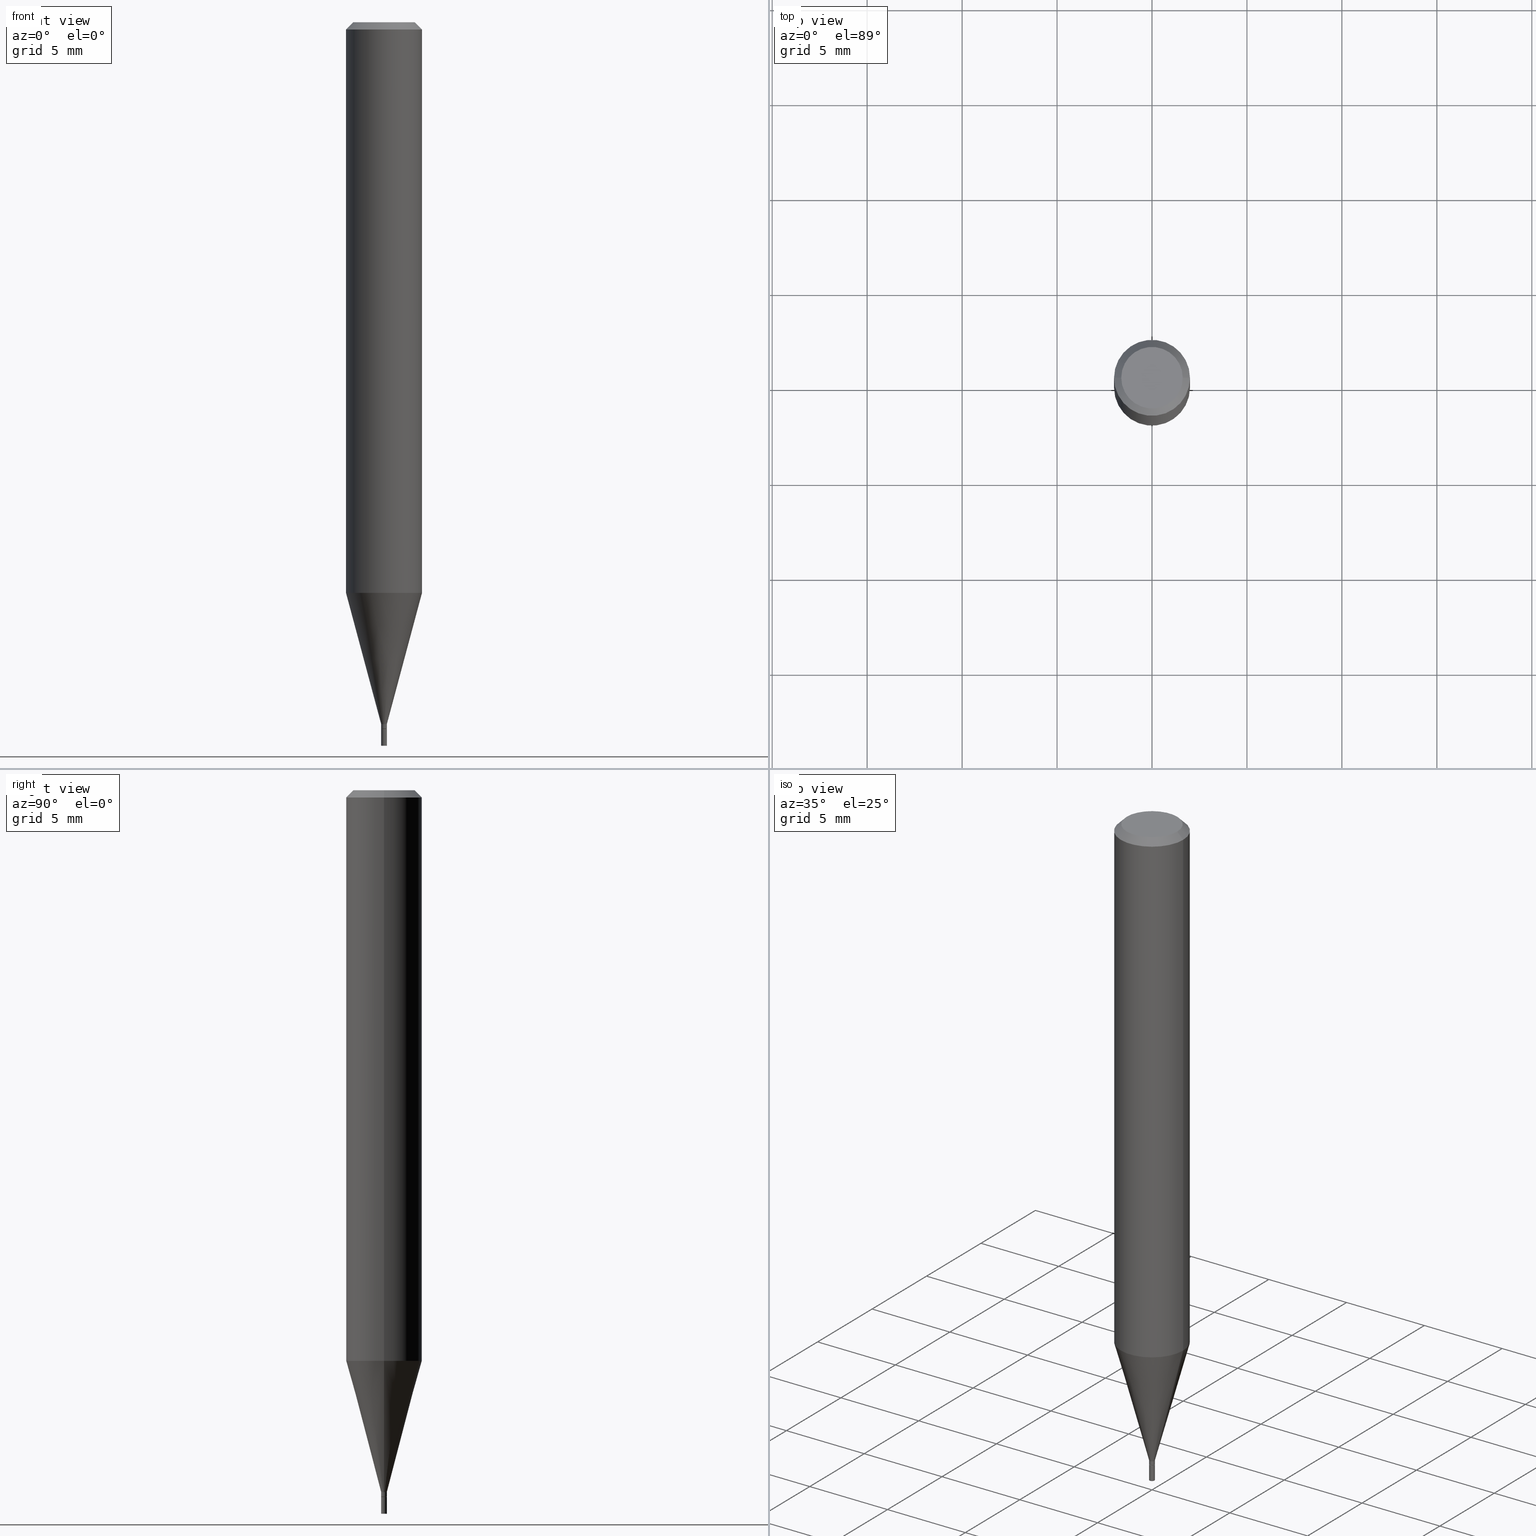
[diagram: canonical four-view strip — front | top / right | iso, engineering-drawing reading convention]
A machine part, canonical four-view strip (front | top / right | iso — engineering-drawing reading convention). The complete STEP part file that produces these views, byte-faithful:
ISO-10303-21;
HEADER;
FILE_DESCRIPTION (( 'STEP AP203' ),
    '1' );
FILE_NAME ('02360.STEP',
    '2024-03-18T20:14:03',
    ( '' ),
    ( '' ),
    'SwSTEP 2.0',
    'SolidWorks 2023',
    '' );
FILE_SCHEMA (( 'CONFIG_CONTROL_DESIGN' ));
ENDSEC;

DATA;
#1 = DIRECTION ( 'NONE',  ( -2.445468806185136597E-29, 3.491481338843145583E-15, 1.000000000000000000 ) ) ;
#2 = PERSON_AND_ORGANIZATION_ROLE ( 'design_supplier' ) ;
#3 = CARTESIAN_POINT ( 'NONE',  ( 3.581633613538751591E-29, -5.113623568869670202E-15, -1.464599999999999902 ) ) ;
#4 = APPROVAL_STATUS ( 'not_yet_approved' ) ;
#5 = CARTESIAN_POINT ( 'NONE',  ( 0.005900000000000001597, -4.119947979834898183E-17, 2.876944297719602825E-31 ) ) ;
#6 = COORDINATED_UNIVERSAL_TIME_OFFSET ( 5, 0, .BEHIND. ) ;
#7 = CYLINDRICAL_SURFACE ( 'NONE', #288, 0.07875000000000000056 ) ;
#8 = CONICAL_SURFACE ( 'NONE', #365, 0.07875000000000000056, 0.7853981633974131960 ) ;
#9 = LOCAL_TIME ( 16, 14, 3.000000000000000000, #439 ) ;
#10 = DIRECTION ( 'NONE',  ( -0.7071067811865642261, 7.493145998870414114E-15, 0.7071067811865309194 ) ) ;
#11 = PERSON_AND_ORGANIZATION ( #424, #175 ) ;
#12 = DIRECTION ( 'NONE',  ( 0.7071067811865227037, -7.319954787623172426E-15, -0.7071067811865723307 ) ) ;
#13 = ADVANCED_FACE ( 'NONE', ( #65 ), #219, .F. ) ;
#14 = DIRECTION ( 'NONE',  ( -2.445468806185136597E-29, 3.491481338843145583E-15, 1.000000000000000000 ) ) ;
#15 = ORIENTED_EDGE ( 'NONE', *, *, #343, .F. ) ;
#16 = VECTOR ( 'NONE', #366, 39.37007874015748143 ) ;
#17 = CARTESIAN_POINT ( 'NONE',  ( 0.000000000000000000, 0.000000000000000000, 0.000000000000000000 ) ) ;
#18 = ORIENTED_EDGE ( 'NONE', *, *, #441, .F. ) ;
#19 = CC_DESIGN_PERSON_AND_ORGANIZATION_ASSIGNMENT ( #160, #442, ( #426 ) ) ;
#20 = ORIENTED_EDGE ( 'NONE', *, *, #261, .F. ) ;
#21 = DIRECTION ( 'NONE',  ( -2.445468806185136597E-29, 3.491481338843145583E-15, 1.000000000000000000 ) ) ;
#22 = VERTEX_POINT ( 'NONE', #209 ) ;
#23 = VECTOR ( 'NONE', #146, 39.37007874015747433 ) ;
#24 = APPROVAL_DATE_TIME ( #171, #403 ) ;
#25 = ORIENTED_EDGE ( 'NONE', *, *, #134, .F. ) ;
#26 = ORIENTED_EDGE ( 'NONE', *, *, #465, .T. ) ;
#27 = CARTESIAN_POINT ( 'NONE',  ( 0.005899999999999924402, -5.121304827815126395E-15, -1.455000000000000293 ) ) ;
#28 = CIRCLE ( 'NONE', #174, 0.06375000000000000111 ) ;
#29 = ADVANCED_FACE ( 'NONE', ( #461 ), #425, .T. ) ;
#30 = AXIS2_PLACEMENT_3D ( 'NONE', #418, #137, #109 ) ;
#31 = ORIENTED_EDGE ( 'NONE', *, *, #165, .F. ) ;
#32 = MANIFOLD_SOLID_BREP ( 'Body-Move/Copy2[1]', #394 ) ;
#33 = DIRECTION ( 'NONE',  ( 0.7071067811865642261, -2.468850131082431399E-15, 0.7071067811865309194 ) ) ;
#34 = VERTEX_POINT ( 'NONE', #121 ) ;
#35 = DIRECTION ( 'NONE',  ( 1.000000000000000000, -6.982962677686265922E-15, 4.876176775795935232E-29 ) ) ;
#36 = DIRECTION ( 'NONE',  ( -2.445468806185136877E-29, 3.491481338843145188E-15, 1.000000000000000000 ) ) ;
#37 = CIRCLE ( 'NONE', #463, 0.005400000000000002021 ) ;
#38 = CARTESIAN_POINT ( 'NONE',  ( 0.005899999999999924402, -4.119947979834845181E-17, 2.876944297719565603E-31 ) ) ;
#39 = DATE_TIME_ROLE ( 'creation_date' ) ;
#40 = EDGE_CURVE ( 'NONE', #173, #22, #295, .T. ) ;
#41 = DIRECTION ( 'NONE',  ( -2.445468806185136597E-29, 3.491481338843145583E-15, 1.000000000000000000 ) ) ;
#42 = APPROVAL_DATE_TIME ( #361, #459 ) ;
#43 = DIRECTION ( 'NONE',  ( -2.445468806185136597E-29, 3.491481338843145583E-15, 1.000000000000000000 ) ) ;
#44 = CARTESIAN_POINT ( 'NONE',  ( 3.581633613538751591E-29, -5.113623568869670202E-15, -1.464599999999999902 ) ) ;
#45 = CARTESIAN_POINT ( 'NONE',  ( -0.005400000000000002021, -5.075254261138625073E-15, -1.464599999999999902 ) ) ;
#46 = CARTESIAN_POINT ( 'NONE',  ( -0.005899999999999924402, -5.038183326606932095E-15, -1.455000000000000293 ) ) ;
#47 = VECTOR ( 'NONE', #257, 39.37007874015748143 ) ;
#48 = APPROVAL_DATE_TIME ( #308, #276 ) ;
#49 = CARTESIAN_POINT ( 'NONE',  ( -0.07875000000000000056, 4.975360907851462665E-16, -0.01499999999999999944 ) ) ;
#50 = APPROVAL_STATUS ( 'not_yet_approved' ) ;
#51 = DATE_TIME_ROLE ( 'classification_date' ) ;
#52 = DIRECTION ( 'NONE',  ( -2.445468806185136597E-29, 3.491481338843145583E-15, 1.000000000000000000 ) ) ;
#53 = APPROVAL_ROLE ( '' ) ;
#54 = DIRECTION ( 'NONE',  ( 1.000000000000000000, 0.000000000000000000, 0.000000000000000000 ) ) ;
#55 = ORIENTED_EDGE ( 'NONE', *, *, #395, .F. ) ;
#56 = ADVANCED_FACE ( 'NONE', ( #79 ), #149, .T. ) ;
#57 = CARTESIAN_POINT ( 'NONE',  ( 3.581633613538751591E-29, -5.113623568869670202E-15, -1.464599999999999902 ) ) ;
#58 = EDGE_CURVE ( 'NONE', #287, #458, #234, .T. ) ;
#59 = EDGE_CURVE ( 'NONE', #22, #173, #28, .T. ) ;
#60 = ORIENTED_EDGE ( 'NONE', *, *, #204, .F. ) ;
#61 = CONICAL_SURFACE ( 'NONE', #182, 0.005400000000000002021, 0.7853981633974718157 ) ;
#62 = SECURITY_CLASSIFICATION ( '', '', #151 ) ;
#63 = ORIENTED_EDGE ( 'NONE', *, *, #58, .T. ) ;
#64 = EDGE_CURVE ( 'NONE', #410, #180, #357, .T. ) ;
#65 = FACE_OUTER_BOUND ( 'NONE', #138, .T. ) ;
#66 = EDGE_CURVE ( 'NONE', #203, #282, #37, .T. ) ;
#67 = LINE ( 'NONE', #433, #99 ) ;
#68 = ORIENTED_EDGE ( 'NONE', *, *, #150, .F. ) ;
#69 = CC_DESIGN_DATE_AND_TIME_ASSIGNMENT ( #226, #39, ( #426 ) ) ;
#70 = CARTESIAN_POINT ( 'NONE',  ( -0.005900000000000001597, 4.192202140984592232E-17, -2.902171703250394946E-31 ) ) ;
#71 = AXIS2_PLACEMENT_3D ( 'NONE', #44, #21, #380 ) ;
#72 = LOCAL_TIME ( 16, 14, 3.000000000000000000, #445 ) ;
#73 = CARTESIAN_POINT ( 'NONE',  ( 0.005400000000000002021, -5.151331567329176257E-15, -1.464599999999999902 ) ) ;
#74 = ORIENTED_EDGE ( 'NONE', *, *, #186, .F. ) ;
#75 = CARTESIAN_POINT ( 'NONE',  ( 0.000000000000000000, 0.000000000000000000, 0.000000000000000000 ) ) ;
#76 = CYLINDRICAL_SURFACE ( 'NONE', #457, 0.005900000000000001597 ) ;
#77 = LINE ( 'NONE', #292, #251 ) ;
#78 = PERSON_AND_ORGANIZATION ( #424, #175 ) ;
#79 = FACE_OUTER_BOUND ( 'NONE', #455, .T. ) ;
#80 = AXIS2_PLACEMENT_3D ( 'NONE', #371, #397, #164 ) ;
#81 = ADVANCED_FACE ( 'NONE', ( #184 ), #399, .F. ) ;
#82 = EDGE_CURVE ( 'NONE', #205, #410, #260, .T. ) ;
#83 = FACE_OUTER_BOUND ( 'NONE', #130, .T. ) ;
#84 = DIRECTION ( 'NONE',  ( -1.000000000000000000, 6.982962677686265922E-15, 0.000000000000000000 ) ) ;
#85 = FACE_OUTER_BOUND ( 'NONE', #208, .T. ) ;
#86 = SHAPE_DEFINITION_REPRESENTATION ( #368, #231 ) ;
#87 = LINE ( 'NONE', #230, #374 ) ;
#88 = PLANE ( 'NONE',  #105 ) ;
#89 = DIRECTION ( 'NONE',  ( -2.445468806185136597E-29, 3.491481338843145583E-15, 1.000000000000000000 ) ) ;
#90 = AXIS2_PLACEMENT_3D ( 'NONE', #386, #291, #286 ) ;
#91 = DIRECTION ( 'NONE',  ( -2.445468806185136597E-29, 3.491481338843145583E-15, 1.000000000000000000 ) ) ;
#92 = CARTESIAN_POINT ( 'NONE',  ( 3.668203209277705088E-31, -5.237222008264718399E-17, -0.01499999999999999944 ) ) ;
#93 = ADVANCED_FACE ( 'NONE', ( #266 ), #436, .T. ) ;
#94 =( LENGTH_UNIT ( ) NAMED_UNIT ( * ) SI_UNIT ( $, .METRE. ) );
#95 = ORIENTED_EDGE ( 'NONE', *, *, #107, .T. ) ;
#96 = CALENDAR_DATE ( 2024, 18, 3 ) ;
#97 = CC_DESIGN_PERSON_AND_ORGANIZATION_ASSIGNMENT ( #78, #265, ( #428 ) ) ;
#98 = AXIS2_PLACEMENT_3D ( 'NONE', #335, #193, #431 ) ;
#99 = VECTOR ( 'NONE', #214, 39.37007874015747433 ) ;
#100 = VECTOR ( 'NONE', #162, 39.37007874015748143 ) ;
#101 = UNCERTAINTY_MEASURE_WITH_UNIT (LENGTH_MEASURE( 1.000000000000000082E-05 ), #169, 'distance_accuracy_value', 'NONE');
#102 = ORIENTED_EDGE ( 'NONE', *, *, #82, .F. ) ;
#103 = CALENDAR_DATE ( 2024, 18, 3 ) ;
#104 = ORIENTED_EDGE ( 'NONE', *, *, #395, .T. ) ;
#105 = AXIS2_PLACEMENT_3D ( 'NONE', #411, #122, #336 ) ;
#106 = DIRECTION ( 'NONE',  ( -2.438088387897960049E-29, 3.491481338843145188E-15, 1.000000000000000000 ) ) ;
#107 = EDGE_CURVE ( 'NONE', #342, #420, #168, .T. ) ;
#108 = ORIENTED_EDGE ( 'NONE', *, *, #66, .T. ) ;
#109 = DIRECTION ( 'NONE',  ( 1.000000000000000000, -6.982962677686216223E-15, 0.000000000000000000 ) ) ;
#110 = ORIENTED_EDGE ( 'NONE', *, *, #398, .F. ) ;
#111 = CIRCLE ( 'NONE', #71, 0.005400000000000002021 ) ;
#112 = ORIENTED_EDGE ( 'NONE', *, *, #249, .T. ) ;
#113 = DIMENSIONAL_EXPONENTS ( 1.000000000000000000, 0.000000000000000000, 0.000000000000000000, 0.000000000000000000, 0.000000000000000000, 0.000000000000000000, 0.000000000000000000 ) ;
#114 = DIRECTION ( 'NONE',  ( 1.000000000000000000, -6.982962677686307731E-15, 0.000000000000000000 ) ) ;
#115 = CARTESIAN_POINT ( 'NONE',  ( 3.558157112999374623E-29, -5.080105348016777334E-15, -1.455000000000000293 ) ) ;
#116 = LINE ( 'NONE', #70, #47 ) ;
#117 = DIRECTION ( 'NONE',  ( -2.445468806185136877E-29, 3.491481338843145188E-15, 1.000000000000000000 ) ) ;
#118 = DIRECTION ( 'NONE',  ( 2.445468806185136597E-29, -3.491481338843145583E-15, -1.000000000000000000 ) ) ;
#119 = AXIS2_PLACEMENT_3D ( 'NONE', #406, #52, #221 ) ;
#120 = CIRCLE ( 'NONE', #145, 0.07875000000000000056 ) ;
#121 = CARTESIAN_POINT ( 'NONE',  ( -0.005899999999999924402, -5.069955806790403460E-15, -1.464100000000000179 ) ) ;
#122 = DIRECTION ( 'NONE',  ( 2.438088387897960049E-29, -3.491481338843145188E-15, -1.000000000000000000 ) ) ;
#123 = CARTESIAN_POINT ( 'NONE',  ( 3.581633613538751591E-29, -5.113623568869670202E-15, -1.464599999999999902 ) ) ;
#124 = AXIS2_PLACEMENT_3D ( 'NONE', #452, #419, #416 ) ;
#125 = APPROVAL_PERSON_ORGANIZATION ( #191, #403, #153 ) ;
#126 = COORDINATED_UNIVERSAL_TIME_OFFSET ( 5, 0, .BEHIND. ) ;
#127 = ADVANCED_FACE ( 'NONE', ( #435 ), #7, .T. ) ;
#128 = ORIENTED_EDGE ( 'NONE', *, *, #465, .F. ) ;
#129 = VECTOR ( 'NONE', #117, 39.37007874015748143 ) ;
#130 = EDGE_LOOP ( 'NONE', ( #74, #279 ) ) ;
#131 = DIRECTION ( 'NONE',  ( 0.000000000000000000, 0.000000000000000000, 1.000000000000000000 ) ) ;
#132 = ORIENTED_EDGE ( 'NONE', *, *, #294, .F. ) ;
#133 = CARTESIAN_POINT ( 'NONE',  ( -0.005400000000000002021, -5.072605033964513872E-15, -1.464599999999999902 ) ) ;
#134 = EDGE_CURVE ( 'NONE', #310, #315, #300, .T. ) ;
#135 = ORIENTED_EDGE ( 'NONE', *, *, #201, .F. ) ;
#136 = APPLICATION_CONTEXT ( 'configuration controlled 3d designs of mechanical parts and assemblies' ) ;
#137 = DIRECTION ( 'NONE',  ( -2.445468806185136597E-29, 3.491481338843145583E-15, 1.000000000000000000 ) ) ;
#138 = EDGE_LOOP ( 'NONE', ( #344, #339 ) ) ;
#139 = CARTESIAN_POINT ( 'NONE',  ( 0.005900000000000001597, -5.278421488063067239E-15, -1.500000000000000222 ) ) ;
#140 = ORIENTED_EDGE ( 'NONE', *, *, #441, .T. ) ;
#141 = ADVANCED_FACE ( 'NONE', ( #152 ), #352, .T. ) ;
#142 = EDGE_LOOP ( 'NONE', ( #20, #385, #104, #60 ) ) ;
#143 = FACE_OUTER_BOUND ( 'NONE', #142, .T. ) ;
#144 = AXIS2_PLACEMENT_3D ( 'NONE', #254, #118, #84 ) ;
#145 = AXIS2_PLACEMENT_3D ( 'NONE', #273, #91, #199 ) ;
#146 = DIRECTION ( 'NONE',  ( -0.2588190451025213501, 5.211531920934551042E-15, 0.9659258262890682012 ) ) ;
#147 = EDGE_CURVE ( 'NONE', #22, #410, #87, .T. ) ;
#148 = APPROVAL_STATUS ( 'not_yet_approved' ) ;
#149 = CYLINDRICAL_SURFACE ( 'NONE', #119, 0.005899999999999924402 ) ;
#150 = EDGE_CURVE ( 'NONE', #287, #315, #317, .T. ) ;
#151 = SECURITY_CLASSIFICATION_LEVEL ( 'unclassified' ) ;
#152 = FACE_OUTER_BOUND ( 'NONE', #305, .T. ) ;
#153 = APPROVAL_ROLE ( '' ) ;
#154 = APPLICATION_CONTEXT ( 'configuration controlled 3d designs of mechanical parts and assemblies' ) ;
#155 = DIRECTION ( 'NONE',  ( -2.438088387897960049E-29, 3.491481338843145188E-15, 1.000000000000000000 ) ) ;
#156 = CIRCLE ( 'NONE', #30, 0.005900000000000001597 ) ;
#157 = DIRECTION ( 'NONE',  ( 1.000000000000000000, -6.982962677686265922E-15, 4.876176775795935232E-29 ) ) ;
#158 = PERSON_AND_ORGANIZATION ( #424, #175 ) ;
#159 = DIRECTION ( 'NONE',  ( -2.445468806185136597E-29, 3.491481338843145583E-15, 1.000000000000000000 ) ) ;
#160 = PERSON_AND_ORGANIZATION ( #424, #175 ) ;
#161 = CARTESIAN_POINT ( 'NONE',  ( 2.893283295264761422E-29, -4.130841746111705750E-15, -1.183120098668607900 ) ) ;
#162 = DIRECTION ( 'NONE',  ( -0.7071067811865227037, 2.468850131081997131E-15, -0.7071067811865723307 ) ) ;
#163 = ORIENTED_EDGE ( 'NONE', *, *, #40, .F. ) ;
#164 = DIRECTION ( 'NONE',  ( 1.000000000000000000, -6.982962677686307731E-15, 0.000000000000000000 ) ) ;
#165 = EDGE_CURVE ( 'NONE', #449, #324, #278, .T. ) ;
#166 = ORIENTED_EDGE ( 'NONE', *, *, #150, .T. ) ;
#167 = ORIENTED_EDGE ( 'NONE', *, *, #147, .F. ) ;
#168 = CIRCLE ( 'NONE', #381, 0.005900000000000001597 ) ;
#169 =( CONVERSION_BASED_UNIT ( 'INCH', #172 ) LENGTH_UNIT ( ) NAMED_UNIT ( #113 ) );
#170 = ORIENTED_EDGE ( 'NONE', *, *, #58, .F. ) ;
#171 = DATE_AND_TIME ( #103, #319 ) ;
#172 = LENGTH_MEASURE_WITH_UNIT ( LENGTH_MEASURE( 0.02539999999999999897 ), #94 );
#173 = VERTEX_POINT ( 'NONE', #430 ) ;
#174 = AXIS2_PLACEMENT_3D ( 'NONE', #362, #293, #364 ) ;
#175 = ORGANIZATION ( 'UNSPECIFIED', 'UNSPECIFIED', '' ) ;
#176 = CARTESIAN_POINT ( 'NONE',  ( 3.558157112999374623E-29, -5.080105348016777334E-15, -1.455000000000000293 ) ) ;
#177 = EDGE_LOOP ( 'NONE', ( #378, #140, #456, #68 ) ) ;
#178 = EDGE_LOOP ( 'NONE', ( #132, #26, #348, #15 ) ) ;
#179 = DIRECTION ( 'NONE',  ( -2.445468806185136877E-29, 3.491481338843145188E-15, 1.000000000000000000 ) ) ;
#180 = VERTEX_POINT ( 'NONE', #225 ) ;
#181 = AXIS2_PLACEMENT_3D ( 'NONE', #75, #355, #35 ) ;
#182 = AXIS2_PLACEMENT_3D ( 'NONE', #353, #1, #350 ) ;
#183 = LOCAL_TIME ( 16, 14, 3.000000000000000000, #126 ) ;
#184 = FACE_OUTER_BOUND ( 'NONE', #421, .T. ) ;
#185 = MANIFOLD_SOLID_BREP ( 'Body-Move/Copy2[2]', #379 ) ;
#186 = EDGE_CURVE ( 'NONE', #282, #203, #111, .T. ) ;
#187 = CARTESIAN_POINT ( 'NONE',  ( 0.000000000000000000, 0.000000000000000000, 0.000000000000000000 ) ) ;
#188 = LINE ( 'NONE', #73, #206 ) ;
#189 = PERSON_AND_ORGANIZATION ( #424, #175 ) ;
#190 = DIRECTION ( 'NONE',  ( -2.445468806185136597E-29, 3.491481338843145583E-15, 1.000000000000000000 ) ) ;
#191 = PERSON_AND_ORGANIZATION ( #424, #175 ) ;
#192 = DIRECTION ( 'NONE',  ( 1.000000000000000000, -6.982962677686307731E-15, 0.000000000000000000 ) ) ;
#193 = DIRECTION ( 'NONE',  ( -2.445468806185136597E-29, 3.491481338843145583E-15, 1.000000000000000000 ) ) ;
#194 = VECTOR ( 'NONE', #36, 39.37007874015748143 ) ;
#195 = DIRECTION ( 'NONE',  ( 2.438088387897960049E-29, -3.491481338843145188E-15, -1.000000000000000000 ) ) ;
#196 = AXIS2_PLACEMENT_3D ( 'NONE', #454, #131, #54 ) ;
#197 = DIRECTION ( 'NONE',  ( 1.000000000000000000, -6.982962677686265922E-15, 4.876176775795935793E-29 ) ) ;
#198 = CARTESIAN_POINT ( 'NONE',  ( 3.581633613538751591E-29, -5.113623568869670202E-15, -1.464599999999999902 ) ) ;
#199 = DIRECTION ( 'NONE',  ( 1.000000000000000000, -6.982962677686268288E-15, 0.000000000000000000 ) ) ;
#200 = ORIENTED_EDGE ( 'NONE', *, *, #422, .T. ) ;
#201 = EDGE_CURVE ( 'NONE', #205, #458, #241, .T. ) ;
#202 = CONICAL_SURFACE ( 'NONE', #451, 0.005899999999999924402, 0.2617993877991500740 ) ;
#203 = VERTEX_POINT ( 'NONE', #133 ) ;
#204 = EDGE_CURVE ( 'NONE', #324, #449, #156, .T. ) ;
#205 = VERTEX_POINT ( 'NONE', #377 ) ;
#206 = VECTOR ( 'NONE', #33, 39.37007874015748143 ) ;
#207 = CC_DESIGN_SECURITY_CLASSIFICATION ( #62, ( #428 ) ) ;
#208 = EDGE_LOOP ( 'NONE', ( #384, #354 ) ) ;
#209 = CARTESIAN_POINT ( 'NONE',  ( 0.06375000000000000111, -5.149965923825433530E-16, 1.055081022549815572E-15 ) ) ;
#210 = CC_DESIGN_PERSON_AND_ORGANIZATION_ASSIGNMENT ( #11, #401, ( #62 ) ) ;
#211 = EDGE_LOOP ( 'NONE', ( #250, #351, #110, #412 ) ) ;
#212 = AXIS2_PLACEMENT_3D ( 'NONE', #123, #89, #429 ) ;
#213 = CC_DESIGN_APPROVAL ( #459, ( #62 ) ) ;
#214 = DIRECTION ( 'NONE',  ( 0.2588190451025213501, 1.565188264969621968E-15, 0.9659258262890682012 ) ) ;
#215 = CARTESIAN_POINT ( 'NONE',  ( 3.558157112999374623E-29, -5.080105348016777334E-15, -1.455000000000000293 ) ) ;
#216 = EDGE_LOOP ( 'NONE', ( #376, #280, #453, #383 ) ) ;
#217 = EDGE_CURVE ( 'NONE', #315, #287, #332, .T. ) ;
#218 = DIRECTION ( 'NONE',  ( -1.000000000000000000, 6.982962677686265922E-15, 0.000000000000000000 ) ) ;
#219 = PLANE ( 'NONE',  #245 ) ;
#220 = DIRECTION ( 'NONE',  ( -2.445468806185136597E-29, 3.491481338843145583E-15, 1.000000000000000000 ) ) ;
#221 = DIRECTION ( 'NONE',  ( 1.000000000000000000, -6.982962677686267499E-15, 4.876176775795936353E-29 ) ) ;
#222 = AXIS2_PLACEMENT_3D ( 'NONE', #17, #443, #197 ) ;
#223 = ADVANCED_FACE ( 'NONE', ( #346 ), #202, .T. ) ;
#224 = CARTESIAN_POINT ( 'NONE',  ( 3.668203209277704895E-29, -5.237222008264718177E-15, -1.500000000000000222 ) ) ;
#225 = CARTESIAN_POINT ( 'NONE',  ( -0.07875000000000000056, -1.532054578686097613E-15, -0.01499999999999999944 ) ) ;
#226 = DATE_AND_TIME ( #275, #72 ) ;
#227 = DIRECTION ( 'NONE',  ( 1.000000000000000000, -6.982962677686265922E-15, 4.876176775795935793E-29 ) ) ;
#228 = APPROVAL_ROLE ( '' ) ;
#229 = CARTESIAN_POINT ( 'NONE',  ( 3.668203209277705088E-31, -5.237222008264718399E-17, -0.01499999999999999944 ) ) ;
#230 = CARTESIAN_POINT ( 'NONE',  ( 0.07875000000000000056, -5.926364374071552647E-16, -0.01499999999999999944 ) ) ;
#231 = ADVANCED_BREP_SHAPE_REPRESENTATION ( '02360', ( #32, #185, #196 ), #341 ) ;
#232 = DIRECTION ( 'NONE',  ( 1.000000000000000000, -6.982962677686265922E-15, 0.000000000000000000 ) ) ;
#233 = AXIS2_PLACEMENT_3D ( 'NONE', #198, #256, #393 ) ;
#234 = LINE ( 'NONE', #46, #23 ) ;
#235 = CIRCLE ( 'NONE', #464, 0.005899999999999924402 ) ;
#236 = FACE_OUTER_BOUND ( 'NONE', #247, .T. ) ;
#237 = PERSON_AND_ORGANIZATION_ROLE ( 'design_owner' ) ;
#238 = ORIENTED_EDGE ( 'NONE', *, *, #64, .F. ) ;
#239 = EDGE_CURVE ( 'NONE', #420, #342, #296, .T. ) ;
#240 = ORIENTED_EDGE ( 'NONE', *, *, #59, .T. ) ;
#241 = CIRCLE ( 'NONE', #309, 0.07875000000000000056 ) ;
#242 =( NAMED_UNIT ( * ) PLANE_ANGLE_UNIT ( ) SI_UNIT ( $, .RADIAN. ) );
#243 = PRODUCT ( '02360', '02360', '', ( #311 ) ) ;
#244 = ORIENTED_EDGE ( 'NONE', *, *, #261, .T. ) ;
#245 = AXIS2_PLACEMENT_3D ( 'NONE', #284, #106, #323 ) ;
#246 = AXIS2_PLACEMENT_3D ( 'NONE', #283, #14, #232 ) ;
#247 = EDGE_LOOP ( 'NONE', ( #95, #244, #31, #55 ) ) ;
#248 = ORIENTED_EDGE ( 'NONE', *, *, #217, .F. ) ;
#249 = EDGE_CURVE ( 'NONE', #282, #310, #188, .T. ) ;
#250 = ORIENTED_EDGE ( 'NONE', *, *, #186, .T. ) ;
#251 = VECTOR ( 'NONE', #179, 39.37007874015748143 ) ;
#252 = EDGE_LOOP ( 'NONE', ( #320, #387, #238, #102 ) ) ;
#253 = FACE_OUTER_BOUND ( 'NONE', #450, .T. ) ;
#254 = CARTESIAN_POINT ( 'NONE',  ( 3.668203209277705088E-31, -5.237222008264718399E-17, -0.01499999999999999944 ) ) ;
#255 = CARTESIAN_POINT ( 'NONE',  ( 0.005400000000000002021, -5.151331567329176257E-15, -1.464599999999999902 ) ) ;
#256 = DIRECTION ( 'NONE',  ( -2.445468806185136597E-29, 3.491481338843145583E-15, 1.000000000000000000 ) ) ;
#257 = DIRECTION ( 'NONE',  ( -2.445468806185136877E-29, 3.491481338843145188E-15, 1.000000000000000000 ) ) ;
#258 = ADVANCED_FACE ( 'NONE', ( #405 ), #8, .T. ) ;
#259 = AXIS2_PLACEMENT_3D ( 'NONE', #176, #220, #114 ) ;
#260 = LINE ( 'NONE', #466, #129 ) ;
#261 = EDGE_CURVE ( 'NONE', #420, #324, #116, .T. ) ;
#262 =( NAMED_UNIT ( * ) SI_UNIT ( $, .STERADIAN. ) SOLID_ANGLE_UNIT ( ) );
#263 = EDGE_CURVE ( 'NONE', #34, #287, #289, .T. ) ;
#264 = CARTESIAN_POINT ( 'NONE',  ( 0.000000000000000000, 0.000000000000000000, 0.000000000000000000 ) ) ;
#265 = PERSON_AND_ORGANIZATION_ROLE ( 'creator' ) ;
#266 = FACE_OUTER_BOUND ( 'NONE', #347, .T. ) ;
#267 = LINE ( 'NONE', #45, #340 ) ;
#268 = CALENDAR_DATE ( 2024, 18, 3 ) ;
#269 = DIRECTION ( 'NONE',  ( -1.000000000000000000, 6.982962677686265922E-15, -4.876176775795935793E-29 ) ) ;
#270 = DIRECTION ( 'NONE',  ( 1.000000000000000000, -6.982962677686267499E-15, 4.876176775795936353E-29 ) ) ;
#271 = CC_DESIGN_APPROVAL ( #276, ( #426 ) ) ;
#272 = ORIENTED_EDGE ( 'NONE', *, *, #263, .T. ) ;
#273 = CARTESIAN_POINT ( 'NONE',  ( 2.893283295264761422E-29, -4.130841746111705750E-15, -1.183120098668607900 ) ) ;
#274 = ORIENTED_EDGE ( 'NONE', *, *, #413, .F. ) ;
#275 = CALENDAR_DATE ( 2024, 18, 3 ) ;
#276 = APPROVAL ( #50, 'UNSPECIFIED' ) ;
#277 = DIRECTION ( 'NONE',  ( 1.000000000000000000, -6.982962677686268288E-15, 0.000000000000000000 ) ) ;
#278 = CIRCLE ( 'NONE', #212, 0.005900000000000001597 ) ;
#279 = ORIENTED_EDGE ( 'NONE', *, *, #66, .F. ) ;
#280 = ORIENTED_EDGE ( 'NONE', *, *, #147, .T. ) ;
#281 = CIRCLE ( 'NONE', #80, 0.005899999999999924402 ) ;
#282 = VERTEX_POINT ( 'NONE', #255 ) ;
#283 = CARTESIAN_POINT ( 'NONE',  ( 3.668203209277705088E-31, -5.237222008264718399E-17, -0.01499999999999999944 ) ) ;
#284 = CARTESIAN_POINT ( 'NONE',  ( 3.576687321579069994E-29, -5.368277968210015545E-15, -1.500000000000000222 ) ) ;
#285 = CC_DESIGN_PERSON_AND_ORGANIZATION_ASSIGNMENT ( #189, #2, ( #428 ) ) ;
#286 = DIRECTION ( 'NONE',  ( 1.000000000000000000, -6.982962677686216223E-15, 0.000000000000000000 ) ) ;
#287 = VERTEX_POINT ( 'NONE', #392 ) ;
#288 = AXIS2_PLACEMENT_3D ( 'NONE', #290, #402, #157 ) ;
#289 = LINE ( 'NONE', #356, #194 ) ;
#290 = CARTESIAN_POINT ( 'NONE',  ( 0.000000000000000000, 0.000000000000000000, 0.000000000000000000 ) ) ;
#291 = DIRECTION ( 'NONE',  ( -2.445468806185136597E-29, 3.491481338843145583E-15, 1.000000000000000000 ) ) ;
#292 = CARTESIAN_POINT ( 'NONE',  ( -0.07875000000000000056, 5.595524044110789003E-16, -3.873661383575737792E-30 ) ) ;
#293 = DIRECTION ( 'NONE',  ( -2.445468806185136597E-29, 3.491481338843145583E-15, 1.000000000000000000 ) ) ;
#294 = EDGE_CURVE ( 'NONE', #458, #180, #77, .T. ) ;
#295 = CIRCLE ( 'NONE', #98, 0.06375000000000000111 ) ;
#296 = CIRCLE ( 'NONE', #90, 0.005900000000000001597 ) ;
#297 = CARTESIAN_POINT ( 'NONE',  ( 3.580410879135658789E-29, -5.111877828200250276E-15, -1.464100000000000179 ) ) ;
#298 = APPLICATION_PROTOCOL_DEFINITION ( 'international standard', 'config_control_design', 1994, #154 ) ;
#299 = APPROVAL_PERSON_ORGANIZATION ( #434, #459, #228 ) ;
#300 = LINE ( 'NONE', #38, #414 ) ;
#301 = DATE_AND_TIME ( #326, #304 ) ;
#302 = DIRECTION ( 'NONE',  ( 1.000000000000000000, -6.982962677686307731E-15, 0.000000000000000000 ) ) ;
#303 = CYLINDRICAL_SURFACE ( 'NONE', #334, 0.005899999999999924402 ) ;
#304 = LOCAL_TIME ( 16, 14, 3.000000000000000000, #6 ) ;
#305 = EDGE_LOOP ( 'NONE', ( #167, #163, #200, #423 ) ) ;
#306 = EDGE_CURVE ( 'NONE', #315, #205, #67, .T. ) ;
#307 = CYLINDRICAL_SURFACE ( 'NONE', #222, 0.005900000000000001597 ) ;
#308 = DATE_AND_TIME ( #96, #183 ) ;
#309 = AXIS2_PLACEMENT_3D ( 'NONE', #161, #318, #277 ) ;
#310 = VERTEX_POINT ( 'NONE', #462 ) ;
#311 = MECHANICAL_CONTEXT ( 'NONE', #136, 'mechanical' ) ;
#312 = ORIENTED_EDGE ( 'NONE', *, *, #217, .T. ) ;
#313 = ADVANCED_FACE ( 'NONE', ( #253 ), #345, .T. ) ;
#314 = PRODUCT_RELATED_PRODUCT_CATEGORY ( 'detail', '', ( #243 ) ) ;
#315 = VERTEX_POINT ( 'NONE', #27 ) ;
#316 = ORIENTED_EDGE ( 'NONE', *, *, #40, .T. ) ;
#317 = CIRCLE ( 'NONE', #396, 0.005899999999999924402 ) ;
#318 = DIRECTION ( 'NONE',  ( -2.445468806185136597E-29, 3.491481338843145583E-15, 1.000000000000000000 ) ) ;
#319 = LOCAL_TIME ( 16, 14, 3.000000000000000000, #415 ) ;
#320 = ORIENTED_EDGE ( 'NONE', *, *, #201, .T. ) ;
#321 = CC_DESIGN_DATE_AND_TIME_ASSIGNMENT ( #301, #51, ( #62 ) ) ;
#322 = DIRECTION ( 'NONE',  ( 1.000000000000000000, -6.982962677686265922E-15, 4.876176775795935793E-29 ) ) ;
#323 = DIRECTION ( 'NONE',  ( 1.000000000000000000, -6.982962677686265922E-15, 4.876176775795935793E-29 ) ) ;
#324 = VERTEX_POINT ( 'NONE', #358 ) ;
#325 = AXIS2_PLACEMENT_3D ( 'NONE', #229, #43, #440 ) ;
#326 = CALENDAR_DATE ( 2024, 18, 3 ) ;
#327 = ADVANCED_FACE ( 'NONE', ( #390 ), #61, .T. ) ;
#328 = DIRECTION ( 'NONE',  ( -2.445468806185136597E-29, 3.491481338843145583E-15, 1.000000000000000000 ) ) ;
#329 = DIRECTION ( 'NONE',  ( -2.445468806185136877E-29, 3.491481338843145188E-15, 1.000000000000000000 ) ) ;
#330 = ADVANCED_FACE ( 'NONE', ( #143 ), #76, .T. ) ;
#331 = DIRECTION ( 'NONE',  ( 1.000000000000000000, -6.982962677686294321E-15, 0.000000000000000000 ) ) ;
#332 = CIRCLE ( 'NONE', #124, 0.005899999999999924402 ) ;
#333 = CARTESIAN_POINT ( 'NONE',  ( -0.005900000000000001597, -5.133500767157348557E-15, -1.500000000000000222 ) ) ;
#334 = AXIS2_PLACEMENT_3D ( 'NONE', #264, #446, #270 ) ;
#335 = CARTESIAN_POINT ( 'NONE',  ( -2.580167728643482691E-44, 3.683795701200213974E-30, 1.055081022549812219E-15 ) ) ;
#336 = DIRECTION ( 'NONE',  ( -1.000000000000000000, 6.982962677686265922E-15, -4.876176775795935793E-29 ) ) ;
#337 = CARTESIAN_POINT ( 'NONE',  ( -0.07875000000000000056, -3.571289341700626159E-15, -1.183120098668607900 ) ) ;
#338 = DESIGN_CONTEXT ( 'detailed design', #154, 'design' ) ;
#339 = ORIENTED_EDGE ( 'NONE', *, *, #239, .F. ) ;
#340 = VECTOR ( 'NONE', #10, 39.37007874015748143 ) ;
#341 =( GEOMETRIC_REPRESENTATION_CONTEXT ( 3 ) GLOBAL_UNCERTAINTY_ASSIGNED_CONTEXT ( ( #101 ) ) GLOBAL_UNIT_ASSIGNED_CONTEXT ( ( #169, #242, #262 ) ) REPRESENTATION_CONTEXT ( 'NONE', 'WORKASPACE' ) );
#342 = VERTEX_POINT ( 'NONE', #139 ) ;
#343 = EDGE_CURVE ( 'NONE', #180, #410, #407, .T. ) ;
#344 = ORIENTED_EDGE ( 'NONE', *, *, #107, .F. ) ;
#345 = CONICAL_SURFACE ( 'NONE', #259, 0.005899999999999924402, 0.2617993877991500740 ) ;
#346 = FACE_OUTER_BOUND ( 'NONE', #370, .T. ) ;
#347 = EDGE_LOOP ( 'NONE', ( #274, #108, #112, #18 ) ) ;
#348 = ORIENTED_EDGE ( 'NONE', *, *, #82, .T. ) ;
#349 = CC_DESIGN_PERSON_AND_ORGANIZATION_ASSIGNMENT ( #158, #237, ( #243 ) ) ;
#350 = DIRECTION ( 'NONE',  ( 1.000000000000000000, -6.982962677686294321E-15, 0.000000000000000000 ) ) ;
#351 = ORIENTED_EDGE ( 'NONE', *, *, #413, .T. ) ;
#352 = CONICAL_SURFACE ( 'NONE', #144, 0.07875000000000000056, 0.7853981633974131960 ) ;
#353 = CARTESIAN_POINT ( 'NONE',  ( 3.581633613538751591E-29, -5.113623568869670202E-15, -1.464599999999999902 ) ) ;
#354 = ORIENTED_EDGE ( 'NONE', *, *, #204, .T. ) ;
#355 = DIRECTION ( 'NONE',  ( -2.445468806185136597E-29, 3.491481338843145583E-15, 1.000000000000000000 ) ) ;
#356 = CARTESIAN_POINT ( 'NONE',  ( -0.005899999999999924402, 4.192202140984537381E-17, -2.902171703250357286E-31 ) ) ;
#357 = CIRCLE ( 'NONE', #325, 0.07875000000000000056 ) ;
#358 = CARTESIAN_POINT ( 'NONE',  ( -0.005900000000000001597, -5.133500767157348557E-15, -1.464599999999999902 ) ) ;
#359 = DIRECTION ( 'NONE',  ( 1.000000000000000000, -6.982962677686216223E-15, 0.000000000000000000 ) ) ;
#360 = PLANE ( 'NONE',  #409 ) ;
#361 = DATE_AND_TIME ( #268, #9 ) ;
#362 = CARTESIAN_POINT ( 'NONE',  ( -2.580167728643482691E-44, 3.683795701200213974E-30, 1.055081022549812219E-15 ) ) ;
#363 = LINE ( 'NONE', #5, #16 ) ;
#364 = DIRECTION ( 'NONE',  ( 1.000000000000000000, -6.982962677686265922E-15, 4.947888571036530338E-29 ) ) ;
#365 = AXIS2_PLACEMENT_3D ( 'NONE', #92, #388, #218 ) ;
#366 = DIRECTION ( 'NONE',  ( -2.445468806185136877E-29, 3.491481338843145188E-15, 1.000000000000000000 ) ) ;
#367 = DIRECTION ( 'NONE',  ( -2.445468806185136597E-29, 3.491481338843145583E-15, 1.000000000000000000 ) ) ;
#368 = PRODUCT_DEFINITION_SHAPE ( 'NONE', 'NONE',  #426 ) ;
#369 = DIRECTION ( 'NONE',  ( 1.000000000000000000, -6.982962677686307731E-15, 0.000000000000000000 ) ) ;
#370 = EDGE_LOOP ( 'NONE', ( #312, #63, #135, #417 ) ) ;
#371 = CARTESIAN_POINT ( 'NONE',  ( 3.580410879135658789E-29, -5.111877828200250276E-15, -1.464100000000000179 ) ) ;
#372 = APPLICATION_PROTOCOL_DEFINITION ( 'international standard', 'config_control_design', 1994, #136 ) ;
#373 = ADVANCED_FACE ( 'NONE', ( #236 ), #307, .T. ) ;
#374 = VECTOR ( 'NONE', #12, 39.37007874015748143 ) ;
#375 = CC_DESIGN_APPROVAL ( #403, ( #428 ) ) ;
#376 = ORIENTED_EDGE ( 'NONE', *, *, #59, .F. ) ;
#377 = CARTESIAN_POINT ( 'NONE',  ( 0.07875000000000000056, -4.680750056979499095E-15, -1.183120098668607900 ) ) ;
#378 = ORIENTED_EDGE ( 'NONE', *, *, #263, .F. ) ;
#379 = CLOSED_SHELL ( 'NONE', ( #56, #327, #258, #29, #223, #313, #127, #141, #81, #432, #93, #448 ) ) ;
#380 = DIRECTION ( 'NONE',  ( 1.000000000000000000, -6.982962677686294321E-15, 0.000000000000000000 ) ) ;
#381 = AXIS2_PLACEMENT_3D ( 'NONE', #224, #190, #359 ) ;
#382 = APPROVAL_PERSON_ORGANIZATION ( #438, #276, #53 ) ;
#383 = ORIENTED_EDGE ( 'NONE', *, *, #422, .F. ) ;
#384 = ORIENTED_EDGE ( 'NONE', *, *, #165, .T. ) ;
#385 = ORIENTED_EDGE ( 'NONE', *, *, #239, .T. ) ;
#386 = CARTESIAN_POINT ( 'NONE',  ( 3.668203209277704895E-29, -5.237222008264718177E-15, -1.500000000000000222 ) ) ;
#387 = ORIENTED_EDGE ( 'NONE', *, *, #294, .T. ) ;
#388 = DIRECTION ( 'NONE',  ( 2.445468806185136597E-29, -3.491481338843145583E-15, -1.000000000000000000 ) ) ;
#389 = ORIENTED_EDGE ( 'NONE', *, *, #306, .T. ) ;
#390 = FACE_OUTER_BOUND ( 'NONE', #211, .T. ) ;
#391 = ADVANCED_FACE ( 'NONE', ( #85 ), #88, .F. ) ;
#392 = CARTESIAN_POINT ( 'NONE',  ( -0.005899999999999924402, -4.304736334153779127E-15, -1.455000000000000293 ) ) ;
#393 = DIRECTION ( 'NONE',  ( 1.000000000000000000, -6.982962677686294321E-15, 0.000000000000000000 ) ) ;
#394 = CLOSED_SHELL ( 'NONE', ( #373, #13, #330, #391 ) ) ;
#395 = EDGE_CURVE ( 'NONE', #342, #449, #363, .T. ) ;
#396 = AXIS2_PLACEMENT_3D ( 'NONE', #115, #159, #302 ) ;
#397 = DIRECTION ( 'NONE',  ( -2.445468806185136597E-29, 3.491481338843145583E-15, 1.000000000000000000 ) ) ;
#398 = EDGE_CURVE ( 'NONE', #310, #34, #281, .T. ) ;
#399 = PLANE ( 'NONE',  #427 ) ;
#400 = DIRECTION ( 'NONE',  ( -2.445468806185136597E-29, 3.491481338843145583E-15, 1.000000000000000000 ) ) ;
#401 = PERSON_AND_ORGANIZATION_ROLE ( 'classification_officer' ) ;
#402 = DIRECTION ( 'NONE',  ( -2.445468806185136597E-29, 3.491481338843145583E-15, 1.000000000000000000 ) ) ;
#403 = APPROVAL ( #4, 'UNSPECIFIED' ) ;
#404 = LINE ( 'NONE', #49, #100 ) ;
#405 = FACE_OUTER_BOUND ( 'NONE', #216, .T. ) ;
#406 = CARTESIAN_POINT ( 'NONE',  ( 0.000000000000000000, 0.000000000000000000, 0.000000000000000000 ) ) ;
#407 = CIRCLE ( 'NONE', #246, 0.07875000000000000056 ) ;
#408 = CARTESIAN_POINT ( 'NONE',  ( 0.005900000000000001597, -5.154823048668019264E-15, -1.464599999999999902 ) ) ;
#409 = AXIS2_PLACEMENT_3D ( 'NONE', #57, #155, #227 ) ;
#410 = VERTEX_POINT ( 'NONE', #447 ) ;
#411 = CARTESIAN_POINT ( 'NONE',  ( 4.119947979838480104E-17, 0.005899999999994887633, -1.464599999999999902 ) ) ;
#412 = ORIENTED_EDGE ( 'NONE', *, *, #249, .F. ) ;
#413 = EDGE_CURVE ( 'NONE', #203, #34, #267, .T. ) ;
#414 = VECTOR ( 'NONE', #329, 39.37007874015748143 ) ;
#415 = COORDINATED_UNIVERSAL_TIME_OFFSET ( 5, 0, .BEHIND. ) ;
#416 = DIRECTION ( 'NONE',  ( 1.000000000000000000, -6.982962677686307731E-15, 0.000000000000000000 ) ) ;
#417 = ORIENTED_EDGE ( 'NONE', *, *, #306, .F. ) ;
#418 = CARTESIAN_POINT ( 'NONE',  ( 3.581633613538751591E-29, -5.113623568869670202E-15, -1.464599999999999902 ) ) ;
#419 = DIRECTION ( 'NONE',  ( -2.445468806185136597E-29, 3.491481338843145583E-15, 1.000000000000000000 ) ) ;
#420 = VERTEX_POINT ( 'NONE', #333 ) ;
#421 = EDGE_LOOP ( 'NONE', ( #316, #240 ) ) ;
#422 = EDGE_CURVE ( 'NONE', #173, #180, #404, .T. ) ;
#423 = ORIENTED_EDGE ( 'NONE', *, *, #343, .T. ) ;
#424 = PERSON ( 'UNSPECIFIED', 'UNSPECIFIED', 'UNSPECIFIED', ('UNSPECIFIED'), ('UNSPECIFIED'), ('UNSPECIFIED') ) ;
#425 = CYLINDRICAL_SURFACE ( 'NONE', #181, 0.07875000000000000056 ) ;
#426 = PRODUCT_DEFINITION ( 'UNKNOWN', '', #428, #338 ) ;
#427 = AXIS2_PLACEMENT_3D ( 'NONE', #444, #195, #269 ) ;
#428 = PRODUCT_DEFINITION_FORMATION_WITH_SPECIFIED_SOURCE ( 'ANY', '', #243, .NOT_KNOWN. ) ;
#429 = DIRECTION ( 'NONE',  ( 1.000000000000000000, -6.982962677686216223E-15, 0.000000000000000000 ) ) ;
#430 = CARTESIAN_POINT ( 'NONE',  ( -0.06375000000000000111, 4.713499807438246990E-16, 1.055081022549809064E-15 ) ) ;
#431 = DIRECTION ( 'NONE',  ( 1.000000000000000000, -6.982962677686265922E-15, 4.947888571036530338E-29 ) ) ;
#432 = ADVANCED_FACE ( 'NONE', ( #83 ), #360, .F. ) ;
#433 = CARTESIAN_POINT ( 'NONE',  ( 0.005899999999999924402, -5.121304827815126395E-15, -1.455000000000000293 ) ) ;
#434 = PERSON_AND_ORGANIZATION ( #424, #175 ) ;
#435 = FACE_OUTER_BOUND ( 'NONE', #178, .T. ) ;
#436 = CONICAL_SURFACE ( 'NONE', #233, 0.005400000000000002021, 0.7853981633974718157 ) ;
#437 = FACE_OUTER_BOUND ( 'NONE', #177, .T. ) ;
#438 = PERSON_AND_ORGANIZATION ( #424, #175 ) ;
#439 = COORDINATED_UNIVERSAL_TIME_OFFSET ( 5, 0, .BEHIND. ) ;
#440 = DIRECTION ( 'NONE',  ( 1.000000000000000000, -6.982962677686265922E-15, 0.000000000000000000 ) ) ;
#441 = EDGE_CURVE ( 'NONE', #34, #310, #235, .T. ) ;
#442 = PERSON_AND_ORGANIZATION_ROLE ( 'creator' ) ;
#443 = DIRECTION ( 'NONE',  ( -2.445468806185136597E-29, 3.491481338843145583E-15, 1.000000000000000000 ) ) ;
#444 = CARTESIAN_POINT ( 'NONE',  ( 4.451638707024993845E-16, 0.06375000000000000111, 3.049585759236555793E-16 ) ) ;
#445 = COORDINATED_UNIVERSAL_TIME_OFFSET ( 5, 0, .BEHIND. ) ;
#446 = DIRECTION ( 'NONE',  ( -2.445468806185136597E-29, 3.491481338843145583E-15, 1.000000000000000000 ) ) ;
#447 = CARTESIAN_POINT ( 'NONE',  ( 0.07875000000000000056, -6.022805309504406221E-16, -0.01499999999999999944 ) ) ;
#448 = ADVANCED_FACE ( 'NONE', ( #437 ), #303, .T. ) ;
#449 = VERTEX_POINT ( 'NONE', #408 ) ;
#450 = EDGE_LOOP ( 'NONE', ( #170, #166, #389, #128 ) ) ;
#451 = AXIS2_PLACEMENT_3D ( 'NONE', #215, #41, #192 ) ;
#452 = CARTESIAN_POINT ( 'NONE',  ( 3.558157112999374623E-29, -5.080105348016777334E-15, -1.455000000000000293 ) ) ;
#453 = ORIENTED_EDGE ( 'NONE', *, *, #64, .T. ) ;
#454 = CARTESIAN_POINT ( 'NONE',  ( 0.000000000000000000, 0.000000000000000000, 0.000000000000000000 ) ) ;
#455 = EDGE_LOOP ( 'NONE', ( #460, #272, #248, #25 ) ) ;
#456 = ORIENTED_EDGE ( 'NONE', *, *, #134, .T. ) ;
#457 = AXIS2_PLACEMENT_3D ( 'NONE', #187, #328, #322 ) ;
#458 = VERTEX_POINT ( 'NONE', #337 ) ;
#459 = APPROVAL ( #148, 'UNSPECIFIED' ) ;
#460 = ORIENTED_EDGE ( 'NONE', *, *, #398, .T. ) ;
#461 = FACE_OUTER_BOUND ( 'NONE', #252, .T. ) ;
#462 = CARTESIAN_POINT ( 'NONE',  ( 0.005899999999999924402, -5.153077307998597760E-15, -1.464100000000000179 ) ) ;
#463 = AXIS2_PLACEMENT_3D ( 'NONE', #3, #367, #331 ) ;
#464 = AXIS2_PLACEMENT_3D ( 'NONE', #297, #400, #369 ) ;
#465 = EDGE_CURVE ( 'NONE', #458, #205, #120, .T. ) ;
#466 = CARTESIAN_POINT ( 'NONE',  ( 0.07875000000000000056, -5.499083108677934443E-16, 3.839989210939299016E-30 ) ) ;
ENDSEC;
END-ISO-10303-21;
